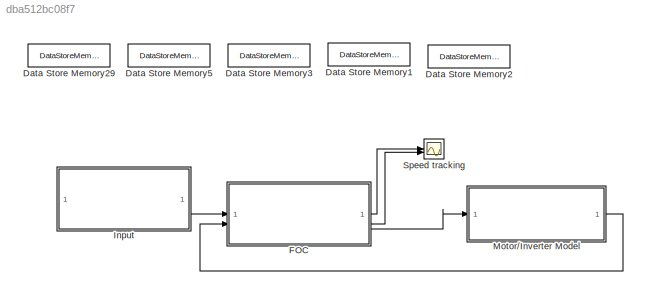
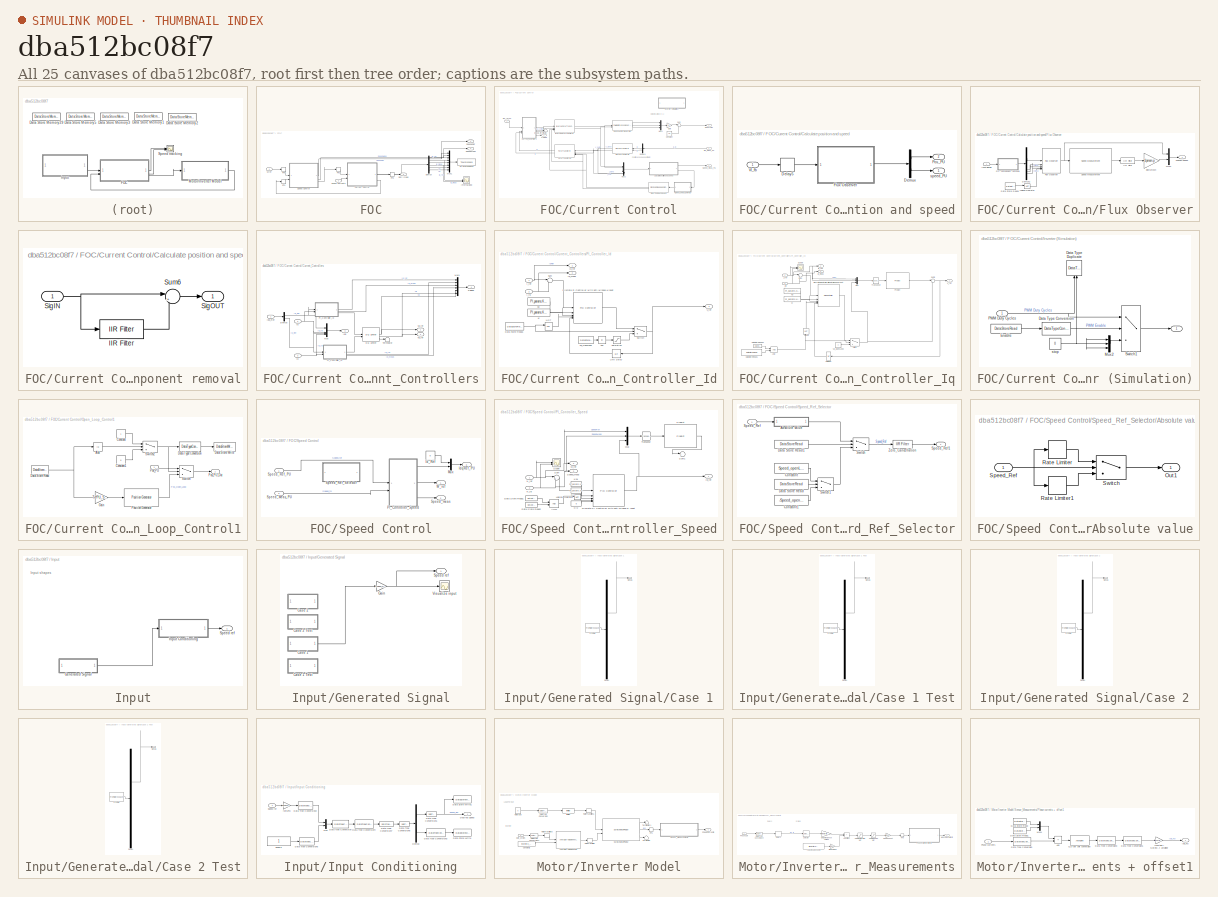
[diagram: thumbnail index - all 25 canvases of the model, root first then tree order]
MODEL slx_dba512bc08f7
KIND model
CONFIG AbsTol = auto
CONFIG EnableMultiTasking = off
CONFIG FixedStep = auto
CONFIG MaxStep = auto
CONFIG MinStep = auto
CONFIG RelTol = 1e-3
CONFIG SampleTimeConstraint = Unconstrained
CONFIG SolverName = VariableStepAuto
CONFIG StartTime = 0.0
CONFIG StopTime = 10
BLOCK [DataStoreMemory] Data Store Memory1
  DataStoreName = IaOffset
  InitialValue = inverter.CtSensAOffset
  ShowAdditionalParam = off
BLOCK [DataStoreMemory] Data Store Memory2
  DataStoreName = IbOffset
  InitialValue = inverter.CtSensBOffset
  ShowAdditionalParam = off
BLOCK [DataStoreMemory] Data Store Memory29
  DataStoreName = Enable
  OutDataTypeStr = boolean
  ReadBeforeWriteMsg = warning
  ShowAdditionalParam = off
  WriteAfterReadMsg = warning
  WriteAfterWriteMsg = warning
BLOCK [DataStoreMemory] Data Store Memory3
  DataStoreName = Speed_ref
  InitialValue = 0.1
  OutDataTypeStr = dataType
  ReadBeforeWriteMsg = warning
  ShowAdditionalParam = off
  WriteAfterReadMsg = warning
  WriteAfterWriteMsg = warning
BLOCK [DataStoreMemory] Data Store Memory5
  DataStoreName = EnClosedLoop
  OutDataTypeStr = boolean
  ReadBeforeWriteMsg = warning
  ShowAdditionalParam = off
  WriteAfterReadMsg = warning
  WriteAfterWriteMsg = warning
BLOCK [SubSystem] FOC
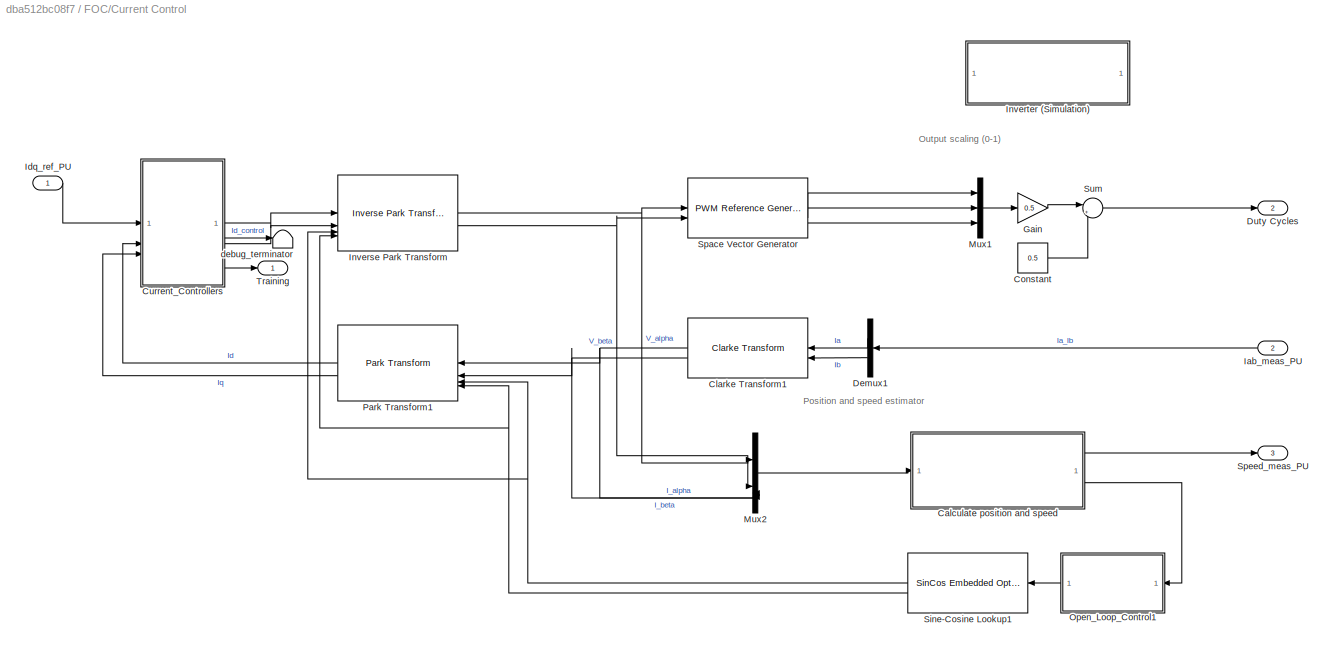
BLOCK [SubSystem] FOC/Current Control
BLOCK [SubSystem] FOC/Current Control/Calculate position and speed
BLOCK [Delay] FOC/Current Control/Calculate position and speed/Delay5
  DelayLength = 1
  InputPortMap = u0
BLOCK [Demux] FOC/Current Control/Calculate position and speed/Demux
  Outputs = 2
BLOCK [SubSystem] FOC/Current Control/Calculate position and speed/Flux Observer
BLOCK [SubSystem] FOC/Current Control/Calculate position and speed/Flux Observer/DC component removal
BLOCK [Reference] FOC/Current Control/Calculate position and speed/Flux Observer/DC component removal/IIR Filter  REF=mcbcontrolslib/IIR Filter
  SourceBlock = mcbcontrolslib/IIR Filter
  SourceType = IIR Filter
BLOCK [Inport] FOC/Current Control/Calculate position and speed/Flux Observer/DC component removal/SigIN
BLOCK [Outport] FOC/Current Control/Calculate position and speed/Flux Observer/DC component removal/SigOUT
BLOCK [Sum] FOC/Current Control/Calculate position and speed/Flux Observer/DC component removal/Sum6
  AccumDataTypeStr = Inherit: Same as first input
  Inputs = |+-
  OutDataTypeStr = Inherit: Same as first input
  RndMeth = Simplest
BLOCK [DataStoreRead] FOC/Current Control/Calculate position and speed/Flux Observer/Data Store Read1
  DataStoreName = Enable
  IndexOptions = Index vector (dialog)
  Indices = 1
  OutputSizes = 1
BLOCK [Demux] FOC/Current Control/Calculate position and speed/Flux Observer/Demux2
BLOCK [Reference] FOC/Current Control/Calculate position and speed/Flux Observer/Flux Observer  REF=mcbpositiondecoderlib/Flux Observer
  SourceBlock = mcbpositiondecoderlib/Flux Observer
  SourceType = Flux Observer
BLOCK [Reference] FOC/Current Control/Calculate position and speed/Flux Observer/IIR Filter  REF=mcbcontrolslib/IIR Filter
  SourceBlock = mcbcontrolslib/IIR Filter
  SourceType = IIR Filter
BLOCK [Inport] FOC/Current Control/Calculate position and speed/Flux Observer/InputSignals
BLOCK [Logic] FOC/Current Control/Calculate position and speed/Flux Observer/Logical Operator
  AllPortsSameDT = off
  IconShape = distinctive
  Operator = NOT
  OutDataTypeStr = boolean
BLOCK [Mux] FOC/Current Control/Calculate position and speed/Flux Observer/Mux2
  DisplayOption = bar
  Inputs = 2
BLOCK [Outport] FOC/Current Control/Calculate position and speed/Flux Observer/Position//Speed
BLOCK [Reference] FOC/Current Control/Calculate position and speed/Flux Observer/Speed Measurement  REF=mcbpositiondecoderlib/Speed Measurement
  SourceBlock = mcbpositiondecoderlib/Speed Measurement
  SourceType = Speed Measurement
BLOCK [Gain] FOC/Current Control/Calculate position and speed/Flux Observer/elect2mech
  Gain = 1/pmsm.p
  OutDataTypeStr = Inherit: Same as input
  RndMeth = Simplest
BLOCK [Outport] FOC/Current Control/Calculate position and speed/Pos_PU
  Port = 2
BLOCK [Inport] FOC/Current Control/Calculate position and speed/VI_fb
BLOCK [Outport] FOC/Current Control/Calculate position and speed/speed_PU
BLOCK [Reference] FOC/Current Control/Clarke Transform1  REF=mcbcontrolslib/Clarke Transform
  NameLocation = top
  SourceBlock = mcbcontrolslib/Clarke Transform
  SourceType = Clarke Transform
BLOCK [Constant] FOC/Current Control/Constant
  OutDataTypeStr = dataType
  Value = 0.5
BLOCK [SubSystem] FOC/Current Control/Current_Controllers
BLOCK [Reference] FOC/Current Control/Current_Controllers/DQ Limiter  REF=mcbcontrolslib/DQ Limiter
  SourceBlock = mcbcontrolslib/DQ Limiter
  SourceType = DQ Limiter
BLOCK [Demux] FOC/Current Control/Current_Controllers/Demux
  Outputs = 2
BLOCK [Inport] FOC/Current Control/Current_Controllers/Id
  Port = 2
BLOCK [Outport] FOC/Current Control/Current_Controllers/Idq
  Port = 3
  VectorParamsAs1DForOutWhenUnconnected = off
BLOCK [Inport] FOC/Current Control/Current_Controllers/Idq_Ref
BLOCK [Inport] FOC/Current Control/Current_Controllers/Iq
  Port = 3
BLOCK [Mux] FOC/Current Control/Current_Controllers/Mux
  DisplayOption = bar
BLOCK [Mux] FOC/Current Control/Current_Controllers/Mux1
  DisplayOption = bar
  Inputs = 6
BLOCK [SubSystem] FOC/Current Control/Current_Controllers/PI_Controller_Id
  NameLocation = top
BLOCK [Abs] FOC/Current Control/Current_Controllers/PI_Controller_Id/Abs
  RndMeth = Simplest
  SaturateOnIntegerOverflow = off
BLOCK [DataStoreRead] FOC/Current Control/Current_Controllers/PI_Controller_Id/Data Store Read1
  DataStoreName = EnClosedLoop
  IndexOptions = Index vector (dialog)
  Indices = 1
  OutputSizes = 1
BLOCK [Reference] FOC/Current Control/Current_Controllers/PI_Controller_Id/Discrete PI Controller with anti-windup & reset  REF=slpidlib/PID Controller
  LibrarySourceBlock = mcbcontrolslib/PI Controller
  SourceBlock = slpidlib/PID Controller
  SourceType = PID 1dof
BLOCK [Inport] FOC/Current Control/Current_Controllers/PI_Controller_Id/I_fb
  Port = 2
BLOCK [Inport] FOC/Current Control/Current_Controllers/PI_Controller_Id/I_ref
BLOCK [Outport] FOC/Current Control/Current_Controllers/PI_Controller_Id/Id_meas
  Port = 2
  VectorParamsAs1DForOutWhenUnconnected = off
BLOCK [Outport] FOC/Current Control/Current_Controllers/PI_Controller_Id/Id_ref
  VectorParamsAs1DForOutWhenUnconnected = off
BLOCK [Constant] FOC/Current Control/Current_Controllers/PI_Controller_Id/Ki
  OutDataTypeStr = dataType
  SampleTime = -1
  Value = PI_params.Ki_i*Ts
BLOCK [Constant] FOC/Current Control/Current_Controllers/PI_Controller_Id/Kp
  NameLocation = top
  OutDataTypeStr = dataType
  SampleTime = -1
  Value = PI_params.Kp_i
BLOCK [Logic] FOC/Current Control/Current_Controllers/PI_Controller_Id/NOT
  AllPortsSameDT = off
  IconShape = distinctive
  Operator = NOT
  OutDataTypeStr = boolean
BLOCK [Saturate] FOC/Current Control/Current_Controllers/PI_Controller_Id/Saturation
  LowerLimit = 0.15
  RndMeth = Simplest
BLOCK [Sum] FOC/Current Control/Current_Controllers/PI_Controller_Id/Sum
  AccumDataTypeStr = Inherit: Same as first input
  Inputs = |+-
  OutDataTypeStr = Inherit: Same as first input
BLOCK [Switch] FOC/Current Control/Current_Controllers/PI_Controller_Id/Switch
  Criteria = u2 ~= 0
  InputSameDT = off
  RndMeth = Simplest
  SaturateOnIntegerOverflow = off
BLOCK [UnitDelay] FOC/Current Control/Current_Controllers/PI_Controller_Id/Unit Delay
  HasFrameUpgradeWarning = on
  NameLocation = top
  SampleTime = -1
BLOCK [Outport] FOC/Current Control/Current_Controllers/PI_Controller_Id/V_ref
  Port = 3
  VectorParamsAs1DForOutWhenUnconnected = off
BLOCK [DataStoreRead] FOC/Current Control/Current_Controllers/PI_Controller_Id/Vd_OpenLoop
  DataStoreName = Speed_ref
  IndexOptions = Index vector (dialog)
  Indices = 1
  OutputSizes = 1
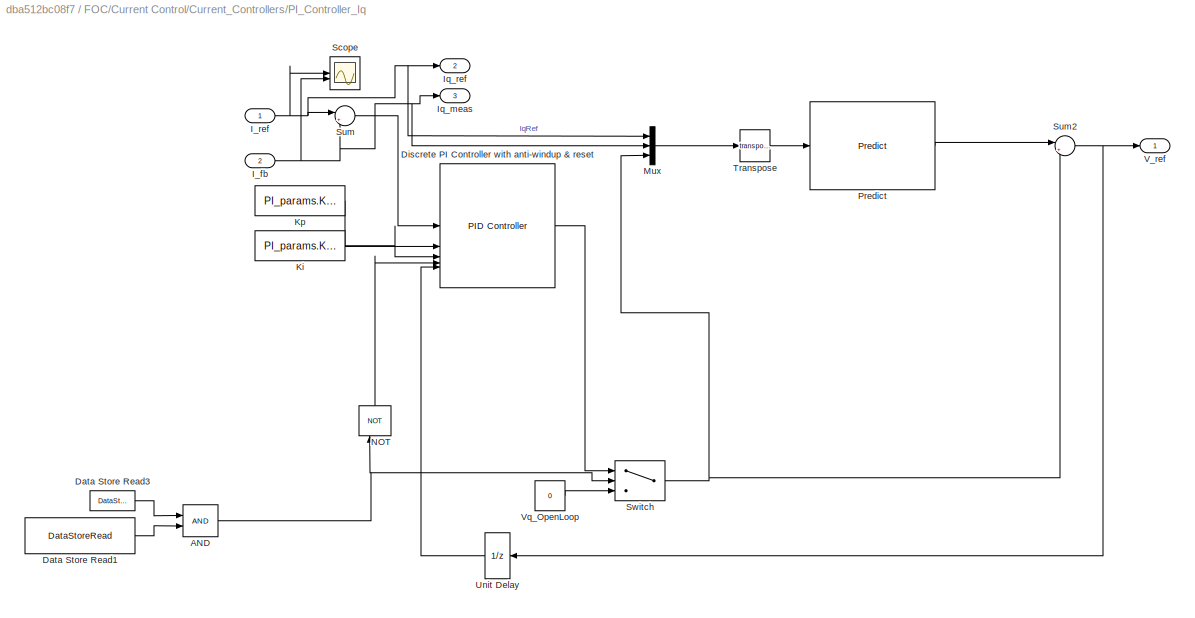
BLOCK [SubSystem] FOC/Current Control/Current_Controllers/PI_Controller_Iq
  NameLocation = top
BLOCK [Logic] FOC/Current Control/Current_Controllers/PI_Controller_Iq/AND
  AllPortsSameDT = off
  IconShape = distinctive
  OutDataTypeStr = boolean
BLOCK [DataStoreRead] FOC/Current Control/Current_Controllers/PI_Controller_Iq/Data Store Read1
  DataStoreName = EnClosedLoop
  IndexOptions = Index vector (dialog)
  Indices = 1
  OutputSizes = 1
BLOCK [DataStoreRead] FOC/Current Control/Current_Controllers/PI_Controller_Iq/Data Store Read3
  DataStoreName = Enable
  IndexOptions = Index vector (dialog)
  Indices = 1
  OutputSizes = 1
BLOCK [Reference] FOC/Current Control/Current_Controllers/PI_Controller_Iq/Discrete PI Controller with anti-windup & reset  REF=slpidlib/PID Controller
  LibrarySourceBlock = mcbcontrolslib/PI Controller
  SourceBlock = slpidlib/PID Controller
  SourceType = PID 1dof
BLOCK [Inport] FOC/Current Control/Current_Controllers/PI_Controller_Iq/I_fb
  Port = 2
BLOCK [Inport] FOC/Current Control/Current_Controllers/PI_Controller_Iq/I_ref
BLOCK [Outport] FOC/Current Control/Current_Controllers/PI_Controller_Iq/Iq_meas
  Port = 3
  VectorParamsAs1DForOutWhenUnconnected = off
BLOCK [Outport] FOC/Current Control/Current_Controllers/PI_Controller_Iq/Iq_ref
  Port = 2
  VectorParamsAs1DForOutWhenUnconnected = off
BLOCK [Constant] FOC/Current Control/Current_Controllers/PI_Controller_Iq/Ki
  OutDataTypeStr = dataType
  SampleTime = -1
  Value = PI_params.Ki_i*Ts
BLOCK [Constant] FOC/Current Control/Current_Controllers/PI_Controller_Iq/Kp
  NameLocation = top
  OutDataTypeStr = dataType
  SampleTime = -1
  Value = PI_params.Kp_i
BLOCK [Mux] FOC/Current Control/Current_Controllers/PI_Controller_Iq/Mux
  DisplayOption = bar
  Inputs = 3
BLOCK [Logic] FOC/Current Control/Current_Controllers/PI_Controller_Iq/NOT
  AllPortsSameDT = off
  IconShape = distinctive
  NameLocation = right
  Operator = NOT
  OutDataTypeStr = boolean
BLOCK [Reference] FOC/Current Control/Current_Controllers/PI_Controller_Iq/Predict  REF=deeplib/Predict
  SourceBlock = deeplib/Predict
  SourceType = Predict
BLOCK [Scope] FOC/Current Control/Current_Controllers/PI_Controller_Iq/Scope
  Floating = off
  NumInputPorts = 2
  ScopeSpecificationString = Simulink.scopes.TimeScopeBlockCfg('CurrentConfiguration', extmgr.ConfigurationSet(extmgr.Configuration('Core','General UI',true,'FigureColor',[1 1 1]),extmgr.Configuration('Core','Source UI',true),extmgr.Configuration('Sources','WiredSimulink',true,'DataLoggingVariableName','ScopeData1'),extmgr.Configuration('Visuals','Time Domain',true,'SerializedDisplays',{struct('MinYLimReal','-0.64917','MaxYLi...<+2017ch>
BLOCK [Sum] FOC/Current Control/Current_Controllers/PI_Controller_Iq/Sum
  AccumDataTypeStr = Inherit: Same as first input
  Inputs = |+-
  OutDataTypeStr = Inherit: Same as first input
BLOCK [Sum] FOC/Current Control/Current_Controllers/PI_Controller_Iq/Sum2
  Inputs = |++
BLOCK [Switch] FOC/Current Control/Current_Controllers/PI_Controller_Iq/Switch
  Criteria = u2 ~= 0
  InputSameDT = off
  RndMeth = Simplest
  SaturateOnIntegerOverflow = off
BLOCK [Math] FOC/Current Control/Current_Controllers/PI_Controller_Iq/Transpose
  Operator = transpose
BLOCK [UnitDelay] FOC/Current Control/Current_Controllers/PI_Controller_Iq/Unit Delay
  HasFrameUpgradeWarning = on
  NameLocation = top
  SampleTime = -1
BLOCK [Outport] FOC/Current Control/Current_Controllers/PI_Controller_Iq/V_ref
  VectorParamsAs1DForOutWhenUnconnected = off
BLOCK [Constant] FOC/Current Control/Current_Controllers/PI_Controller_Iq/Vq_OpenLoop
  OutDataTypeStr = dataType
  SampleTime = -1
  Value = 0
BLOCK [Terminator] FOC/Current Control/Current_Controllers/Terminator
BLOCK [Outport] FOC/Current Control/Current_Controllers/Training
  Port = 4
  VectorParamsAs1DForOutWhenUnconnected = off
BLOCK [Outport] FOC/Current Control/Current_Controllers/Vd_ref
  NameLocation = top
  VectorParamsAs1DForOutWhenUnconnected = off
BLOCK [Outport] FOC/Current Control/Current_Controllers/Vq_ref
  Port = 2
  VectorParamsAs1DForOutWhenUnconnected = off
BLOCK [Demux] FOC/Current Control/Demux1
  NameLocation = top
  Outputs = 2
BLOCK [Outport] FOC/Current Control/Duty Cycles
  Port = 2
  VectorParamsAs1DForOutWhenUnconnected = off
BLOCK [Gain] FOC/Current Control/Gain
  Gain = 0.5
  OutDataTypeStr = Inherit: Same as input
BLOCK [Inport] FOC/Current Control/Iab_meas_PU
  NameLocation = top
  Port = 2
BLOCK [Inport] FOC/Current Control/Idq_ref_PU
BLOCK [Reference] FOC/Current Control/Inverse Park Transform  REF=mcbcontrolslib/Inverse Park Transform
  SourceBlock = mcbcontrolslib/Inverse Park Transform
  SourceType = Inverse Park Transform
BLOCK [SubSystem] FOC/Current Control/Inverter (Simulation)
  Commented = on
BLOCK [Outport] FOC/Current Control/Inverter (Simulation)/ 
  VectorParamsAs1DForOutWhenUnconnected = off
BLOCK [DataTypeConversion] FOC/Current Control/Inverter (Simulation)/Data Type Conversion
  OutDataTypeStr = dataType
  RndMeth = Floor
  SaturateOnIntegerOverflow = off
BLOCK [DataTypeDuplicate] FOC/Current Control/Inverter (Simulation)/Data Type Duplicate
BLOCK [DataStoreRead] FOC/Current Control/Inverter (Simulation)/Enable
  DataStoreName = Enable
  IndexOptions = Index vector (dialog)
  Indices = 1
  OutputSizes = 1
BLOCK [Mux] FOC/Current Control/Inverter (Simulation)/Mux2
  DisplayOption = bar
  Inputs = 3
BLOCK [Inport] FOC/Current Control/Inverter (Simulation)/PWM Duty Cycles
BLOCK [Switch] FOC/Current Control/Inverter (Simulation)/Switch1
  InputSameDT = off
  RndMeth = Simplest
  SaturateOnIntegerOverflow = off
  Threshold = 0.5
BLOCK [Constant] FOC/Current Control/Inverter (Simulation)/stop
  OutDataTypeStr = Inherit: Inherit via back propagation
  Value = 0
BLOCK [Mux] FOC/Current Control/Mux1
  DisplayOption = bar
  Inputs = 3
BLOCK [Mux] FOC/Current Control/Mux2
  DisplayOption = bar
BLOCK [SubSystem] FOC/Current Control/Open_Loop_Control1
  NameLocation = top
BLOCK [Abs] FOC/Current Control/Open_Loop_Control1/Abs
  SaturateOnIntegerOverflow = off
BLOCK [Constant] FOC/Current Control/Open_Loop_Control1/Constant
  OutDataTypeStr = uint16
BLOCK [Constant] FOC/Current Control/Open_Loop_Control1/Constant1
  OutDataTypeStr = uint16
  Value = 0
BLOCK [DataStoreRead] FOC/Current Control/Open_Loop_Control1/Data Store Read
  DataStoreName = Speed_ref
  IndexOptions = Index vector (dialog)
  Indices = 1
  OutputSizes = 1
BLOCK [DataStoreWrite] FOC/Current Control/Open_Loop_Control1/Data Store Write
  DataStoreName = EnClosedLoop
  IndexOptions = Index vector (dialog)
  Indices = 1
  OutputSizes = 1
BLOCK [DataTypeConversion] FOC/Current Control/Open_Loop_Control1/Data Type Conversion
  OutDataTypeStr = boolean
  RndMeth = Simplest
  SaturateOnIntegerOverflow = off
BLOCK [Gain] FOC/Current Control/Open_Loop_Control1/Gain
  Gain = Ts*PU_System.N_base*pmsm.p/60
  OutDataTypeStr = Inherit: Same as input
  ParamDataTypeStr = Inherit: Same as input
BLOCK [Inport] FOC/Current Control/Open_Loop_Control1/Pos_PU
BLOCK [Outport] FOC/Current Control/Open_Loop_Control1/Pos_PU_Out
BLOCK [Reference] FOC/Current Control/Open_Loop_Control1/Position Generator  REF=mcbcontrolslib/Position Generator
  SourceBlock = mcbcontrolslib/Position Generator
  SourceType = Position Generator
BLOCK [Switch] FOC/Current Control/Open_Loop_Control1/Switch
  Criteria = u2 ~= 0
  InputSameDT = off
  SaturateOnIntegerOverflow = off
  Threshold = 0.1
BLOCK [Switch] FOC/Current Control/Open_Loop_Control1/Switch2
  Criteria = u2 > Threshold
  InputSameDT = off
  SaturateOnIntegerOverflow = off
  Threshold = Speed_openLoop_PU
  ZeroCross = off
BLOCK [Reference] FOC/Current Control/Park Transform1  REF=mcbcontrolslib/Park Transform
  NameLocation = top
  SourceBlock = mcbcontrolslib/Park Transform
  SourceType = Park Transform
BLOCK [Reference] FOC/Current Control/Sine-Cosine Lookup1  REF=mcbcontrolslib/SinCos Embedded Optimized
  NameLocation = top
  SourceBlock = mcbcontrolslib/SinCos Embedded Optimized
  SourceType = SinCos Embedded Optimized
BLOCK [Reference] FOC/Current Control/Space Vector Generator  REF=mcbcontrolslib/PWM Reference Generator
  SourceBlock = mcbcontrolslib/PWM Reference Generator
  SourceType = PWM Modulation
BLOCK [Outport] FOC/Current Control/Speed_meas_PU
  InitialOutput = 0
  Port = 3
  VectorParamsAs1DForOutWhenUnconnected = off
BLOCK [Sum] FOC/Current Control/Sum
  AccumDataTypeStr = Inherit: Same as first input
  Inputs = |++
BLOCK [Outport] FOC/Current Control/Training
  VectorParamsAs1DForOutWhenUnconnected = off
BLOCK [Terminator] FOC/Current Control/debug_terminator
BLOCK [Demux] FOC/Demux
  Outputs = 6
BLOCK [Outport] FOC/Duty cycles
  Port = 3
BLOCK [Scope] FOC/Internal loop
  Floating = off
  NumInputPorts = 2
  ScopeSpecificationString = Simulink.scopes.TimeScopeBlockCfg('CurrentConfiguration', extmgr.ConfigurationSet(extmgr.Configuration('Core','General UI',true,'FigureColor',[1 1 1]),extmgr.Configuration('Core','Source UI',true),extmgr.Configuration('Sources','WiredSimulink',true,'DataLoggingVariableName','ScopeData4'),extmgr.Configuration('Visuals','Time Domain',true,'SerializedDisplays',{struct('MinYLimReal','-0.87933','MaxYLi...<+2019ch>
BLOCK [Mux] FOC/Mux1
  DisplayOption = bar
  Inputs = 8
BLOCK [Inport] FOC/Phase Currents
  Port = 2
BLOCK [RateTransition] FOC/RT2
  Deterministic = off
BLOCK [RateTransition] FOC/RT3
  Deterministic = off
BLOCK [RateTransition] FOC/RT4
  Deterministic = off
  OutPortSampleTime = Ts_speed
BLOCK [RateTransition] FOC/RT6
  Deterministic = off
  OutPortSampleTime = Ts_speed
BLOCK [SubSystem] FOC/Speed Control
  RTWSystemCode = Reusable function
  SystemSampleTime = Ts_speed
  TreatAsAtomicUnit = on
BLOCK [Constant] FOC/Speed Control/Id_Ref
  OutDataTypeStr = dataType
  Value = 0
BLOCK [Outport] FOC/Speed Control/IdqRef_PU
  Port = 3
  VectorParamsAs1DForOutWhenUnconnected = off
BLOCK [Mux] FOC/Speed Control/Mux
  DisplayOption = bar
  Inputs = 2
BLOCK [SubSystem] FOC/Speed Control/PI_Controller_Speed
BLOCK [Logic] FOC/Speed Control/PI_Controller_Speed/AND
  AllPortsSameDT = off
  IconShape = distinctive
  OutDataTypeStr = boolean
BLOCK [DataStoreRead] FOC/Speed Control/PI_Controller_Speed/Data Store Read1
  DataStoreName = Enable
  IndexOptions = Index vector (dialog)
  Indices = 1
  OutputSizes = 1
BLOCK [DataStoreRead] FOC/Speed Control/PI_Controller_Speed/Data Store Read2
  DataStoreName = EnClosedLoop
  IndexOptions = Index vector (dialog)
  Indices = 1
  OutputSizes = 1
BLOCK [Reference] FOC/Speed Control/PI_Controller_Speed/Discrete PI Controller with anti-windup & reset  REF=slpidlib/PID Controller
  LibrarySourceBlock = mcbcontrolslib/PI Controller
  SourceBlock = slpidlib/PID Controller
  SourceType = PID 1dof
BLOCK [Outport] FOC/Speed Control/PI_Controller_Speed/Iq_ref
  VectorParamsAs1DForOutWhenUnconnected = off
BLOCK [Constant] FOC/Speed Control/PI_Controller_Speed/Ki1
  NameLocation = top
  OutDataTypeStr = dataType
  SampleTime = -1
  Value = PI_params.Ki_speed*Ts_speed
BLOCK [Constant] FOC/Speed Control/PI_Controller_Speed/Ki2
  NameLocation = top
  OutDataTypeStr = dataType
  SampleTime = -1
  Value = 0
BLOCK [Constant] FOC/Speed Control/PI_Controller_Speed/Kp1
  NameLocation = top
  OutDataTypeStr = dataType
  SampleTime = -1
  Value = PI_params.Kp_speed
BLOCK [Logic] FOC/Speed Control/PI_Controller_Speed/Logical Operator
  AllPortsSameDT = off
  IconShape = distinctive
  Operator = NOT
  OutDataTypeStr = boolean
BLOCK [Mux] FOC/Speed Control/PI_Controller_Speed/Mux
  Commented = on
  DisplayOption = bar
  Inputs = 3
BLOCK [Inport] FOC/Speed Control/PI_Controller_Speed/N_fb
  Port = 2
BLOCK [Inport] FOC/Speed Control/PI_Controller_Speed/N_ref
BLOCK [Reference] FOC/Speed Control/PI_Controller_Speed/Predict  REF=deeplib/Predict
  Commented = on
  SourceBlock = deeplib/Predict
  SourceType = Predict
BLOCK [Scope] FOC/Speed Control/PI_Controller_Speed/Scope
  Floating = off
  NumInputPorts = 2
  ScopeSpecificationString = Simulink.scopes.TimeScopeBlockCfg('CurrentConfiguration', extmgr.ConfigurationSet(extmgr.Configuration('Core','General UI',true,'FigureColor',[1 1 1]),extmgr.Configuration('Core','Source UI',true),extmgr.Configuration('Sources','WiredSimulink',true),extmgr.Configuration('Visuals','Time Domain',true,'SerializedDisplays',{struct('MinYLimReal','-0.19273','MaxYLimReal','1.06655','YLabelReal','','MinYL...<+1986ch>
BLOCK [Outport] FOC/Speed Control/PI_Controller_Speed/Speed_meas
  Port = 3
  VectorParamsAs1DForOutWhenUnconnected = off
BLOCK [Sum] FOC/Speed Control/PI_Controller_Speed/Sum
  Inputs = |+-
  OutDataTypeStr = Inherit: Same as first input
BLOCK [Sum] FOC/Speed Control/PI_Controller_Speed/Sum1
  Commented = on
  Inputs = |++
BLOCK [Math] FOC/Speed Control/PI_Controller_Speed/Transpose
  Commented = on
  Operator = transpose
BLOCK [Outport] FOC/Speed Control/PI_Controller_Speed/W_ref
  Port = 2
  VectorParamsAs1DForOutWhenUnconnected = off
BLOCK [Inport] FOC/Speed Control/Speed_Meas_PU
  Port = 2
BLOCK [Inport] FOC/Speed Control/Speed_Ref_PU
BLOCK [SubSystem] FOC/Speed Control/Speed_Ref_Selector
  Commented = on
BLOCK [SubSystem] FOC/Speed Control/Speed_Ref_Selector/Absolute value
BLOCK [Outport] FOC/Speed Control/Speed_Ref_Selector/Absolute value/Out1
BLOCK [RateLimiter] FOC/Speed Control/Speed_Ref_Selector/Absolute value/Rate Limiter
  FallingSlewLimit = -acceleration
  InitialCondition = Speed_openLoop_PU
  RisingSlewLimit = acceleration
  SampleTimeMode = inherited
BLOCK [RateLimiter] FOC/Speed Control/Speed_Ref_Selector/Absolute value/Rate Limiter1
  FallingSlewLimit = -acceleration
  InitialCondition = -Speed_openLoop_PU
  RisingSlewLimit = acceleration
  SampleTimeMode = inherited
BLOCK [Inport] FOC/Speed Control/Speed_Ref_Selector/Absolute value/Speed_Ref
BLOCK [Switch] FOC/Speed Control/Speed_Ref_Selector/Absolute value/Switch
  InputSameDT = off
  SaturateOnIntegerOverflow = off
BLOCK [Constant] FOC/Speed Control/Speed_Ref_Selector/Constant
  OutDataTypeStr = dataType
  Value = Speed_openLoop_PU
BLOCK [Constant] FOC/Speed Control/Speed_Ref_Selector/Constant1
  OutDataTypeStr = dataType
  Value = -Speed_openLoop_PU
BLOCK [DataStoreRead] FOC/Speed Control/Speed_Ref_Selector/Data Store Read
  DataStoreName = Speed_ref
  IndexOptions = Index vector (dialog)
  Indices = 1
  OutputSizes = 1
BLOCK [DataStoreRead] FOC/Speed Control/Speed_Ref_Selector/Data Store Read1
  DataStoreName = EnClosedLoop
  IndexOptions = Index vector (dialog)
  Indices = 1
  OutputSizes = 1
BLOCK [Inport] FOC/Speed Control/Speed_Ref_Selector/Speed_Ref
BLOCK [Outport] FOC/Speed Control/Speed_Ref_Selector/Speed_Ref1
BLOCK [Switch] FOC/Speed Control/Speed_Ref_Selector/Switch
  Criteria = u2 > Threshold
  InputSameDT = off
  SaturateOnIntegerOverflow = off
BLOCK [Switch] FOC/Speed Control/Speed_Ref_Selector/Switch1
  Criteria = u2 > Threshold
  InputSameDT = off
  SaturateOnIntegerOverflow = off
BLOCK [Reference] FOC/Speed Control/Speed_Ref_Selector/Zero_Cancellation  REF=mcbcontrolslib/IIR Filter
  SourceBlock = mcbcontrolslib/IIR Filter
  SourceType = IIR Filter
BLOCK [Outport] FOC/Speed Control/Speed_meas
  Port = 2
  VectorParamsAs1DForOutWhenUnconnected = off
BLOCK [Outport] FOC/Speed Control/W_ref
  VectorParamsAs1DForOutWhenUnconnected = off
BLOCK [Outport] FOC/SpeedMeas
  Port = 2
BLOCK [Outport] FOC/SpeedeRef
BLOCK [ToWorkspace] FOC/To Workspace1
  FixptAsFi = on
  MaxDataPoints = inf
  SampleTime = -1
  SaveFormat = Structure
  VariableName = simout
BLOCK [Inport] FOC/Wref
BLOCK [SubSystem] Input
BLOCK [SubSystem] Input/Generated Signal
  NameLocation = top
BLOCK [SubSystem] Input/Generated Signal/Case 1
  ClipboardFcn = sigbuilder_block('clipboard');
  CloseFcn = sigbuilder_block('close');
  ContinueFcn = sigbuilder_block('continue');
  CopyFcn = sigbuilder_block('copy');
  DeleteFcn = sigbuilder_block('delete');
  LoadFcn = sigbuilder_block('load');
  MaskHideContents = on
  ModelCloseFcn = sigbuilder_block('modelClose');
  NameChangeFcn = sigbuilder_block('namechange');
  OpenFcn = sigbuilder_block('open',[12.96 20.16 1141.2 517.68 ]);
  PauseFcn = sigbuilder_block('pause');
  PreSaveFcn = sigbuilder_block('preSave');
  StartFcn = sigbuilder_block('start');
  StopFcn = sigbuilder_block('stop');
  Tag = STV Subsys
BLOCK [SubSystem] Input/Generated Signal/Case 1 Test
  ClipboardFcn = sigbuilder_block('clipboard');
  CloseFcn = sigbuilder_block('close');
  ContinueFcn = sigbuilder_block('continue');
  CopyFcn = sigbuilder_block('copy');
  DeleteFcn = sigbuilder_block('delete');
  LoadFcn = sigbuilder_block('load');
  MaskHideContents = on
  ModelCloseFcn = sigbuilder_block('modelClose');
  NameChangeFcn = sigbuilder_block('namechange');
  OpenFcn = sigbuilder_block('open',[12.96 20.16 1141.2 517.68 ]);
  PauseFcn = sigbuilder_block('pause');
  PreSaveFcn = sigbuilder_block('preSave');
  StartFcn = sigbuilder_block('start');
  StopFcn = sigbuilder_block('stop');
  Tag = STV Subsys
BLOCK [Demux] Input/Generated Signal/Case 1 Test/Demux
  DisplayOption = none
  Outputs = 1
  Tag = STV Demux
BLOCK [FromWorkspace] Input/Generated Signal/Case 1 Test/FromWs
  Tag = STV FromWs
  VariableName = tuvar
BLOCK [Outport] Input/Generated Signal/Case 1 Test/Signal 1
  Tag = STV Outport
BLOCK [Demux] Input/Generated Signal/Case 1/Demux
  DisplayOption = none
  Outputs = 1
  Tag = STV Demux
BLOCK [FromWorkspace] Input/Generated Signal/Case 1/FromWs
  Tag = STV FromWs
  VariableName = tuvar
BLOCK [Outport] Input/Generated Signal/Case 1/Signal 1
  Tag = STV Outport
BLOCK [SubSystem] Input/Generated Signal/Case 2
  ClipboardFcn = sigbuilder_block('clipboard');
  CloseFcn = sigbuilder_block('close');
  ContinueFcn = sigbuilder_block('continue');
  CopyFcn = sigbuilder_block('copy');
  DeleteFcn = sigbuilder_block('delete');
  LoadFcn = sigbuilder_block('load');
  MaskHideContents = on
  ModelCloseFcn = sigbuilder_block('modelClose');
  NameChangeFcn = sigbuilder_block('namechange');
  OpenFcn = sigbuilder_block('open',[12.96 -12.96 1244.16 550.8 ]);
  PauseFcn = sigbuilder_block('pause');
  PreSaveFcn = sigbuilder_block('preSave');
  StartFcn = sigbuilder_block('start');
  StopFcn = sigbuilder_block('stop');
  Tag = STV Subsys
BLOCK [SubSystem] Input/Generated Signal/Case 2 Test
  ClipboardFcn = sigbuilder_block('clipboard');
  CloseFcn = sigbuilder_block('close');
  ContinueFcn = sigbuilder_block('continue');
  CopyFcn = sigbuilder_block('copy');
  DeleteFcn = sigbuilder_block('delete');
  LoadFcn = sigbuilder_block('load');
  MaskHideContents = on
  ModelCloseFcn = sigbuilder_block('modelClose');
  NameChangeFcn = sigbuilder_block('namechange');
  OpenFcn = sigbuilder_block('open',[12.96 -12.96 1244.16 550.8 ]);
  PauseFcn = sigbuilder_block('pause');
  PreSaveFcn = sigbuilder_block('preSave');
  StartFcn = sigbuilder_block('start');
  StopFcn = sigbuilder_block('stop');
  Tag = STV Subsys
BLOCK [Demux] Input/Generated Signal/Case 2 Test/Demux
  DisplayOption = none
  Outputs = 1
  Tag = STV Demux
BLOCK [FromWorkspace] Input/Generated Signal/Case 2 Test/FromWs
  Tag = STV FromWs
  VariableName = tuvar
BLOCK [Outport] Input/Generated Signal/Case 2 Test/Signal 1
  Tag = STV Outport
BLOCK [Demux] Input/Generated Signal/Case 2/Demux
  DisplayOption = none
  Outputs = 1
  Tag = STV Demux
BLOCK [FromWorkspace] Input/Generated Signal/Case 2/FromWs
  Tag = STV FromWs
  VariableName = tuvar
BLOCK [Outport] Input/Generated Signal/Case 2/Signal 1
  Tag = STV Outport
BLOCK [Gain] Input/Generated Signal/Gain
  Gain = Speed_openLoop_PU*pmsm.N_base / 0.1
BLOCK [Outport] Input/Generated Signal/Speed ref
BLOCK [Scope] Input/Generated Signal/Visualize input
  Floating = off
  NumInputPorts = 1
  ScopeSpecificationString = Simulink.scopes.TimeScopeBlockCfg('CurrentConfiguration', extmgr.ConfigurationSet(extmgr.Configuration('Core','General UI',true),extmgr.Configuration('Core','Source UI',true),extmgr.Configuration('Sources','WiredSimulink',true,'DataLoggingVariableName','ScopeData1'),extmgr.Configuration('Visuals','Time Domain',true,'SerializedDisplays',{struct('MinYLimReal','-163.755','MaxYLimReal','3657.195','YLa...<+1423ch>
BLOCK [SubSystem] Input/Input Conditioning
  RTWMemSecFuncExecute = code_ramfuncs
  SystemSampleTime = 1e-3
BLOCK [DataStoreWrite] Input/Input Conditioning/Data Store Write
  DataStoreName = Enable
  IndexOptions = Index vector (dialog)
  Indices = 1
  OutputSizes = 1
BLOCK [DataStoreWrite] Input/Input Conditioning/Data Store Write1
  DataStoreName = Speed_ref
  IndexOptions = Index vector (dialog)
  Indices = 1
  OutputSizes = 1
BLOCK [DataTypeConversion] Input/Input Conditioning/Data Type Conversion
  OutDataTypeStr = fixdt(1,16,12)
  RndMeth = Simplest
  SaturateOnIntegerOverflow = off
BLOCK [DataTypeConversion] Input/Input Conditioning/Data Type Conversion1
  OutDataTypeStr = dataType
  RndMeth = Simplest
  SaturateOnIntegerOverflow = off
BLOCK [DataTypeConversion] Input/Input Conditioning/Data Type Conversion2
  OutDataTypeStr = single
  RndMeth = Simplest
  SaturateOnIntegerOverflow = off
BLOCK [DataTypeConversion] Input/Input Conditioning/Data Type Conversion3
  OutDataTypeStr = boolean
  RndMeth = Simplest
  SaturateOnIntegerOverflow = off
BLOCK [DataTypeConversion] Input/Input Conditioning/Data Type Conversion4
  ConvertRealWorld = Stored Integer (SI)
  OutDataTypeStr = uint32
  RndMeth = Simplest
  SaturateOnIntegerOverflow = off
BLOCK [DataTypeConversion] Input/Input Conditioning/Data Type Conversion5
  OutDataTypeStr = single
  RndMeth = Simplest
  SaturateOnIntegerOverflow = off
BLOCK [DataTypeConversion] Input/Input Conditioning/Data Type Conversion6
  OutDataTypeStr = single
  RndMeth = Simplest
  SaturateOnIntegerOverflow = off
BLOCK [DataTypeConversion] Input/Input Conditioning/Data Type Conversion7
  ConvertRealWorld = Stored Integer (SI)
  OutDataTypeStr = fixdt(1,16,12)
  RndMeth = Simplest
  SaturateOnIntegerOverflow = off
BLOCK [Demux] Input/Input Conditioning/Demux
  Outputs = 2
BLOCK [Outport] Input/Input Conditioning/Desired Speed
  VectorParamsAs1DForOutWhenUnconnected = off
BLOCK [Constant] Input/Input Conditioning/Enable
  OutDataTypeStr = dataType
  SampleTime = -1
BLOCK [Mux] Input/Input Conditioning/Mux
  DisplayOption = bar
  Inputs = 2
BLOCK [Inport] Input/Input Conditioning/Speed ref
BLOCK [Gain] Input/Input Conditioning/rpm2PU
  Gain = 1/pmsm.N_base
  OutDataTypeStr = Inherit: Same as input
  RndMeth = Simplest
BLOCK [Outport] Input/Speed ref
BLOCK [SubSystem] Motor//Inverter Model
  RTWSystemCode = Reusable function
BLOCK [Reference] Motor//Inverter Model/Average-Value Inverter  REF=mcbplantlib/Average-Value Inverter
  SourceBlock = mcbplantlib/Average-Value Inverter
  SourceType = Average Value Inverter
BLOCK [Constant] Motor//Inverter Model/Constant2
  OutDataTypeStr = single
  SampleTime = -1
  Value = inverter.V_dc
BLOCK [DataTypeConversion] Motor//Inverter Model/Data Type Conversion
  OutDataTypeStr = single
  RndMeth = Floor
  SaturateOnIntegerOverflow = off
BLOCK [DataTypeConversion] Motor//Inverter Model/Data Type Conversion1
  OutDataTypeStr = single
  RndMeth = Simplest
  SaturateOnIntegerOverflow = off
BLOCK [Inport] Motor//Inverter Model/Duty_Cycles
BLOCK [Reference] Motor//Inverter Model/IIR Filter  REF=mcbcontrolslib/IIR Filter
  SourceBlock = mcbcontrolslib/IIR Filter
  SourceType = IIR Filter
BLOCK [Constant] Motor//Inverter Model/No torque
  Value = 0
BLOCK [Outport] Motor//Inverter Model/Phase Currents
  VectorParamsAs1DForOutWhenUnconnected = off
BLOCK [RateTransition] Motor//Inverter Model/RT1
  Deterministic = off
  OutPortSampleTime = Ts_simulink
BLOCK [RateTransition] Motor//Inverter Model/Rate Transition
  Deterministic = off
  OutPortSampleTime = Ts_motor
BLOCK [RateTransition] Motor//Inverter Model/Rate Transition1
  Deterministic = off
  OutPortSampleTime = Ts_motor
BLOCK [RateTransition] Motor//Inverter Model/Rate Transition3
  Deterministic = off
  OutPortSampleTime = Ts_inverter
BLOCK [SubSystem] Motor//Inverter Model/Sensor_Measurements
BLOCK [Sum] Motor//Inverter Model/Sensor_Measurements/Add Offset
  IconShape = rectangular
  RndMeth = Simplest
BLOCK [DataTypeConversion] Motor//Inverter Model/Sensor_Measurements/Data Type Conversion4
  OutDataTypeStr = single
  RndMeth = Simplest
  SaturateOnIntegerOverflow = off
BLOCK [Delay] Motor//Inverter Model/Sensor_Measurements/Delay1
  DelayLength = PI_params.delay_Currents
  InputPortMap = u0
BLOCK [Gain] Motor//Inverter Model/Sensor_Measurements/Get ADC Count
  Gain = target.ADC_MaxCount/target.ADC_Vref
  OutDataTypeStr = uint16
  OutMax = target.ADC_MaxCount
  OutMin = 0
  RndMeth = Simplest
BLOCK [Gain] Motor//Inverter Model/Sensor_Measurements/Get Current Sense Voltage
  Gain = inverter.invertingAmp * inverter.ISenseVoltPerAmp
  OutDataTypeStr = Inherit: Same as input
  RndMeth = Simplest
BLOCK [Outport] Motor//Inverter Model/Sensor_Measurements/Measured Currents
  VectorParamsAs1DForOutWhenUnconnected = off
BLOCK [Gain] Motor//Inverter Model/Sensor_Measurements/Offset voltage
  Gain = target.ADC_Vref / target.ADC_MaxCount
  RndMeth = Simplest
BLOCK [SubSystem] Motor//Inverter Model/Sensor_Measurements/Phase currents + offset1
BLOCK [Sum] Motor//Inverter Model/Sensor_Measurements/Phase currents + offset1/Add
  IconShape = rectangular
  Inputs = -+
BLOCK [DataStoreRead] Motor//Inverter Model/Sensor_Measurements/Phase currents + offset1/Data Store Read
  DataStoreName = IaOffset
  IndexOptions = Index vector (dialog)
  Indices = 1
  OutputSizes = 1
BLOCK [DataStoreRead] Motor//Inverter Model/Sensor_Measurements/Phase currents + offset1/Data Store Read1
  DataStoreName = IbOffset
  IndexOptions = Index vector (dialog)
  Indices = 1
  OutputSizes = 1
BLOCK [DataTypeConversion] Motor//Inverter Model/Sensor_Measurements/Phase currents + offset1/Data Type Conversion
  ConvertRealWorld = Stored Integer (SI)
  OutDataTypeStr = int32
  RndMeth = Floor
  SaturateOnIntegerOverflow = off
BLOCK [DataTypeConversion] Motor//Inverter Model/Sensor_Measurements/Phase currents + offset1/Data Type Conversion1
  OutDataTypeStr = dataType
  RndMeth = Floor
  SaturateOnIntegerOverflow = off
BLOCK [DataTypeConversion] Motor//Inverter Model/Sensor_Measurements/Phase currents + offset1/Data Type Conversion3
  ConvertRealWorld = Stored Integer (SI)
  OutDataTypeStr = fixdt(1,32,17)
  RndMeth = Simplest
  SaturateOnIntegerOverflow = off
BLOCK [Outport] Motor//Inverter Model/Sensor_Measurements/Phase currents + offset1/Iab_PU
BLOCK [Gain] Motor//Inverter Model/Sensor_Measurements/Phase currents + offset1/Inverting // Non-inverting Current measurement amplifier
  Gain = inverter.invertingAmp
  OutDataTypeStr = Inherit: Same as input
  RndMeth = Simplest
BLOCK [Mux] Motor//Inverter Model/Sensor_Measurements/Phase currents + offset1/Mux1
  DisplayOption = bar
  Inputs = 2
BLOCK [Inport] Motor//Inverter Model/Sensor_Measurements/Phase currents + offset1/Phase currents
BLOCK [ArithShift] Motor//Inverter Model/Sensor_Measurements/Phase currents + offset1/Q17 per unit conversion
  BitShiftNumber = -6
  InputPortMap = u0
BLOCK [Inport] Motor//Inverter Model/Sensor_Measurements/PhaseCurr
BLOCK [RateTransition] Motor//Inverter Model/Sensor_Measurements/RT5
  Deterministic = off
BLOCK [Saturate] Motor//Inverter Model/Sensor_Measurements/Saturate at ADC Vref
  LowerLimit = 0
  UpperLimit = target.ADC_Vref
BLOCK [Saturate] Motor//Inverter Model/Sensor_Measurements/Saturate at inverter Vref
  LowerLimit = 0
  UpperLimit = inverter.ISenseVref
BLOCK [Selector] Motor//Inverter Model/Sensor_Measurements/Selector
  IndexOptions = Index vector (dialog)
  Indices = [1 2]
  InputPortWidth = 3
  OutputSizes = 1
BLOCK [Constant] Motor//Inverter Model/Sensor_Measurements/~1.65V in ADC counts
  OutDataTypeStr = uint16
  SampleTime = -1
  Value = [inverter.CtSensAOffset inverter.CtSensBOffset]
BLOCK [Reference] Motor//Inverter Model/Surface Mount PMSM  REF=autolibpmsmexterior/Surface Mount PMSM
  LibrarySourceBlock = mcblib/Electrical Systems/Motors/Surface Mount PMSM
  SourceBlock = autolibpmsmexterior/Surface Mount PMSM
  SourceType = Surface Mount PMSM
BLOCK [Terminator] Motor//Inverter Model/Terminator
BLOCK [Terminator] Motor//Inverter Model/Terminator1
BLOCK [Scope] Speed tracking
  Floating = off
  NumInputPorts = 2
  ScopeSpecificationString = Simulink.scopes.TimeScopeBlockCfg('CurrentConfiguration', extmgr.ConfigurationSet(extmgr.Configuration('Core','General UI',true,'FigureColor',[1 1 1]),extmgr.Configuration('Core','Source UI',true),extmgr.Configuration('Sources','WiredSimulink',true,'DataLoggingVariableName','ScopeData1'),extmgr.Configuration('Visuals','Time Domain',true,'SerializedDisplays',{struct('MinYLimReal','-0.42995','MaxYLi...<+1670ch>
ANNOTATION FOC/Current Control: Position and speed estimator
ANNOTATION FOC/Current Control: Output scaling (0-1)
ANNOTATION Input: Input shapes
ANNOTATION Motor//Inverter Model: Inverter
ANNOTATION Motor//Inverter Model: Load Torque
ANNOTATION Motor//Inverter Model/Sensor_Measurements: Delays
ANNOTATION Motor//Inverter Model/Sensor_Measurements: Scaling
LINE FOC/Current Control/Calculate position and speed/Delay5:1 -> FOC/Current Control/Calculate position and speed/Flux Observer:1
LINE FOC/Current Control/Calculate position and speed/Demux:1 -> FOC/Current Control/Calculate position and speed/Pos_PU:1
LINE FOC/Current Control/Calculate position and speed/Demux:2 -> FOC/Current Control/Calculate position and speed/speed_PU:1
LINE FOC/Current Control/Calculate position and speed/Flux Observer/DC component removal/IIR Filter:1 -> FOC/Current Control/Calculate position and speed/Flux Observer/DC component removal/Sum6:2
NET FOC/Current Control/Calculate position and speed/Flux Observer/DC component removal/SigIN:1 -> FOC/Current Control/Calculate position and speed/Flux Observer/DC component removal/IIR Filter:1, FOC/Current Control/Calculate position and speed/Flux Observer/DC component removal/Sum6:1
LINE FOC/Current Control/Calculate position and speed/Flux Observer/DC component removal/Sum6:1 -> FOC/Current Control/Calculate position and speed/Flux Observer/DC component removal/SigOUT:1
LINE FOC/Current Control/Calculate position and speed/Flux Observer/DC component removal:1 -> FOC/Current Control/Calculate position and speed/Flux Observer/Demux2:1
LINE FOC/Current Control/Calculate position and speed/Flux Observer/Data Store Read1:1 -> FOC/Current Control/Calculate position and speed/Flux Observer/Logical Operator:1
LINE FOC/Current Control/Calculate position and speed/Flux Observer/Demux2:1 -> FOC/Current Control/Calculate position and speed/Flux Observer/Flux Observer:1
LINE FOC/Current Control/Calculate position and speed/Flux Observer/Demux2:2 -> FOC/Current Control/Calculate position and speed/Flux Observer/Flux Observer:2
LINE FOC/Current Control/Calculate position and speed/Flux Observer/Demux2:3 -> FOC/Current Control/Calculate position and speed/Flux Observer/Flux Observer:3
LINE FOC/Current Control/Calculate position and speed/Flux Observer/Demux2:4 -> FOC/Current Control/Calculate position and speed/Flux Observer/Flux Observer:4
NET FOC/Current Control/Calculate position and speed/Flux Observer/Flux Observer:1 -> FOC/Current Control/Calculate position and speed/Flux Observer/Mux2:1, FOC/Current Control/Calculate position and speed/Flux Observer/Speed Measurement:1
LINE FOC/Current Control/Calculate position and speed/Flux Observer/IIR Filter:1 -> FOC/Current Control/Calculate position and speed/Flux Observer/elect2mech:1
LINE FOC/Current Control/Calculate position and speed/Flux Observer/InputSignals:1 -> FOC/Current Control/Calculate position and speed/Flux Observer/DC component removal:1
LINE FOC/Current Control/Calculate position and speed/Flux Observer/Logical Operator:1 -> FOC/Current Control/Calculate position and speed/Flux Observer/Flux Observer:5
LINE FOC/Current Control/Calculate position and speed/Flux Observer/Mux2:1 -> FOC/Current Control/Calculate position and speed/Flux Observer/Position//Speed:1
LINE FOC/Current Control/Calculate position and speed/Flux Observer/Speed Measurement:1 -> FOC/Current Control/Calculate position and speed/Flux Observer/IIR Filter:1
LINE FOC/Current Control/Calculate position and speed/Flux Observer/elect2mech:1 -> FOC/Current Control/Calculate position and speed/Flux Observer/Mux2:2
LINE FOC/Current Control/Calculate position and speed/Flux Observer:1 -> FOC/Current Control/Calculate position and speed/Demux:1
LINE FOC/Current Control/Calculate position and speed/VI_fb:1 -> FOC/Current Control/Calculate position and speed/Delay5:1
LINE FOC/Current Control/Calculate position and speed:1 -> FOC/Current Control/Speed_meas_PU:1
LINE FOC/Current Control/Calculate position and speed:2 -> FOC/Current Control/Open_Loop_Control1:1
NET FOC/Current Control/Clarke Transform1:1 -> FOC/Current Control/Mux2:3, FOC/Current Control/Park Transform1:1
NET FOC/Current Control/Clarke Transform1:2 -> FOC/Current Control/Mux2:4, FOC/Current Control/Park Transform1:2
LINE FOC/Current Control/Constant:1 -> FOC/Current Control/Sum:2
NET FOC/Current Control/Current_Controllers/DQ Limiter:1 -> FOC/Current Control/Current_Controllers/Mux1:5, FOC/Current Control/Current_Controllers/Vd_ref:1
NET FOC/Current Control/Current_Controllers/DQ Limiter:2 -> FOC/Current Control/Current_Controllers/Mux1:6, FOC/Current Control/Current_Controllers/Vq_ref:1
LINE FOC/Current Control/Current_Controllers/DQ Limiter:3 -> FOC/Current Control/Current_Controllers/Terminator:1
NET FOC/Current Control/Current_Controllers/Demux:1 -> FOC/Current Control/Current_Controllers/Mux:1, FOC/Current Control/Current_Controllers/PI_Controller_Id:1
NET FOC/Current Control/Current_Controllers/Demux:2 -> FOC/Current Control/Current_Controllers/Mux:3, FOC/Current Control/Current_Controllers/PI_Controller_Iq:1
NET FOC/Current Control/Current_Controllers/Id:1 -> FOC/Current Control/Current_Controllers/Mux:2, FOC/Current Control/Current_Controllers/PI_Controller_Id:2
LINE FOC/Current Control/Current_Controllers/Idq_Ref:1 -> FOC/Current Control/Current_Controllers/Demux:1
NET FOC/Current Control/Current_Controllers/Iq:1 -> FOC/Current Control/Current_Controllers/Mux:4, FOC/Current Control/Current_Controllers/PI_Controller_Iq:2
LINE FOC/Current Control/Current_Controllers/Mux1:1 -> FOC/Current Control/Current_Controllers/Training:1
LINE FOC/Current Control/Current_Controllers/Mux:1 -> FOC/Current Control/Current_Controllers/Idq:1
LINE FOC/Current Control/Current_Controllers/PI_Controller_Id/Abs:1 -> FOC/Current Control/Current_Controllers/PI_Controller_Id/Saturation:1
NET FOC/Current Control/Current_Controllers/PI_Controller_Id/Data Store Read1:1 -> FOC/Current Control/Current_Controllers/PI_Controller_Id/NOT:1, FOC/Current Control/Current_Controllers/PI_Controller_Id/Switch:2
LINE FOC/Current Control/Current_Controllers/PI_Controller_Id/Discrete PI Controller with anti-windup & reset:1 -> FOC/Current Control/Current_Controllers/PI_Controller_Id/Switch:1
NET FOC/Current Control/Current_Controllers/PI_Controller_Id/I_fb:1 -> FOC/Current Control/Current_Controllers/PI_Controller_Id/Id_meas:1, FOC/Current Control/Current_Controllers/PI_Controller_Id/Sum:2
NET FOC/Current Control/Current_Controllers/PI_Controller_Id/I_ref:1 -> FOC/Current Control/Current_Controllers/PI_Controller_Id/Id_ref:1, FOC/Current Control/Current_Controllers/PI_Controller_Id/Sum:1
LINE FOC/Current Control/Current_Controllers/PI_Controller_Id/Ki:1 -> FOC/Current Control/Current_Controllers/PI_Controller_Id/Discrete PI Controller with anti-windup & reset:3
LINE FOC/Current Control/Current_Controllers/PI_Controller_Id/Kp:1 -> FOC/Current Control/Current_Controllers/PI_Controller_Id/Discrete PI Controller with anti-windup & reset:2
LINE FOC/Current Control/Current_Controllers/PI_Controller_Id/NOT:1 -> FOC/Current Control/Current_Controllers/PI_Controller_Id/Discrete PI Controller with anti-windup & reset:4
LINE FOC/Current Control/Current_Controllers/PI_Controller_Id/Saturation:1 -> FOC/Current Control/Current_Controllers/PI_Controller_Id/Switch:3
LINE FOC/Current Control/Current_Controllers/PI_Controller_Id/Sum:1 -> FOC/Current Control/Current_Controllers/PI_Controller_Id/Discrete PI Controller with anti-windup & reset:1
NET FOC/Current Control/Current_Controllers/PI_Controller_Id/Switch:1 -> FOC/Current Control/Current_Controllers/PI_Controller_Id/Unit Delay:1, FOC/Current Control/Current_Controllers/PI_Controller_Id/V_ref:1
LINE FOC/Current Control/Current_Controllers/PI_Controller_Id/Unit Delay:1 -> FOC/Current Control/Current_Controllers/PI_Controller_Id/Discrete PI Controller with anti-windup & reset:5
LINE FOC/Current Control/Current_Controllers/PI_Controller_Id/Vd_OpenLoop:1 -> FOC/Current Control/Current_Controllers/PI_Controller_Id/Abs:1
LINE FOC/Current Control/Current_Controllers/PI_Controller_Id:1 -> FOC/Current Control/Current_Controllers/Mux1:1
LINE FOC/Current Control/Current_Controllers/PI_Controller_Id:2 -> FOC/Current Control/Current_Controllers/Mux1:3
LINE FOC/Current Control/Current_Controllers/PI_Controller_Id:3 -> FOC/Current Control/Current_Controllers/DQ Limiter:1
NET FOC/Current Control/Current_Controllers/PI_Controller_Iq/AND:1 -> FOC/Current Control/Current_Controllers/PI_Controller_Iq/NOT:1, FOC/Current Control/Current_Controllers/PI_Controller_Iq/Switch:2
LINE FOC/Current Control/Current_Controllers/PI_Controller_Iq/Data Store Read1:1 -> FOC/Current Control/Current_Controllers/PI_Controller_Iq/AND:2
LINE FOC/Current Control/Current_Controllers/PI_Controller_Iq/Data Store Read3:1 -> FOC/Current Control/Current_Controllers/PI_Controller_Iq/AND:1
LINE FOC/Current Control/Current_Controllers/PI_Controller_Iq/Discrete PI Controller with anti-windup & reset:1 -> FOC/Current Control/Current_Controllers/PI_Controller_Iq/Switch:1
NET FOC/Current Control/Current_Controllers/PI_Controller_Iq/I_fb:1 -> FOC/Current Control/Current_Controllers/PI_Controller_Iq/Iq_meas:1, FOC/Current Control/Current_Controllers/PI_Controller_Iq/Mux:2, FOC/Current Control/Current_Controllers/PI_Controller_Iq/Scope:2, FOC/Current Control/Current_Controllers/PI_Controller_Iq/Sum:2
NET FOC/Current Control/Current_Controllers/PI_Controller_Iq/I_ref:1 -> FOC/Current Control/Current_Controllers/PI_Controller_Iq/Iq_ref:1, FOC/Current Control/Current_Controllers/PI_Controller_Iq/Mux:1, FOC/Current Control/Current_Controllers/PI_Controller_Iq/Scope:1, FOC/Current Control/Current_Controllers/PI_Controller_Iq/Sum:1
LINE FOC/Current Control/Current_Controllers/PI_Controller_Iq/Ki:1 -> FOC/Current Control/Current_Controllers/PI_Controller_Iq/Discrete PI Controller with anti-windup & reset:3
LINE FOC/Current Control/Current_Controllers/PI_Controller_Iq/Kp:1 -> FOC/Current Control/Current_Controllers/PI_Controller_Iq/Discrete PI Controller with anti-windup & reset:2
LINE FOC/Current Control/Current_Controllers/PI_Controller_Iq/Mux:1 -> FOC/Current Control/Current_Controllers/PI_Controller_Iq/Transpose:1
LINE FOC/Current Control/Current_Controllers/PI_Controller_Iq/NOT:1 -> FOC/Current Control/Current_Controllers/PI_Controller_Iq/Discrete PI Controller with anti-windup & reset:4
LINE FOC/Current Control/Current_Controllers/PI_Controller_Iq/Predict:1 -> FOC/Current Control/Current_Controllers/PI_Controller_Iq/Sum2:1
NET FOC/Current Control/Current_Controllers/PI_Controller_Iq/Sum2:1 -> FOC/Current Control/Current_Controllers/PI_Controller_Iq/Unit Delay:1, FOC/Current Control/Current_Controllers/PI_Controller_Iq/V_ref:1
LINE FOC/Current Control/Current_Controllers/PI_Controller_Iq/Sum:1 -> FOC/Current Control/Current_Controllers/PI_Controller_Iq/Discrete PI Controller with anti-windup & reset:1
NET FOC/Current Control/Current_Controllers/PI_Controller_Iq/Switch:1 -> FOC/Current Control/Current_Controllers/PI_Controller_Iq/Mux:3, FOC/Current Control/Current_Controllers/PI_Controller_Iq/Sum2:2
LINE FOC/Current Control/Current_Controllers/PI_Controller_Iq/Transpose:1 -> FOC/Current Control/Current_Controllers/PI_Controller_Iq/Predict:1
LINE FOC/Current Control/Current_Controllers/PI_Controller_Iq/Unit Delay:1 -> FOC/Current Control/Current_Controllers/PI_Controller_Iq/Discrete PI Controller with anti-windup & reset:5
LINE FOC/Current Control/Current_Controllers/PI_Controller_Iq/Vq_OpenLoop:1 -> FOC/Current Control/Current_Controllers/PI_Controller_Iq/Switch:3
LINE FOC/Current Control/Current_Controllers/PI_Controller_Iq:1 -> FOC/Current Control/Current_Controllers/DQ Limiter:2
LINE FOC/Current Control/Current_Controllers/PI_Controller_Iq:2 -> FOC/Current Control/Current_Controllers/Mux1:2
LINE FOC/Current Control/Current_Controllers/PI_Controller_Iq:3 -> FOC/Current Control/Current_Controllers/Mux1:4
LINE FOC/Current Control/Current_Controllers:1 -> FOC/Current Control/Inverse Park Transform:1
LINE FOC/Current Control/Current_Controllers:2 -> FOC/Current Control/Inverse Park Transform:2
LINE FOC/Current Control/Current_Controllers:3 -> FOC/Current Control/debug_terminator:1
LINE FOC/Current Control/Current_Controllers:4 -> FOC/Current Control/Training:1
LINE FOC/Current Control/Demux1:1 -> FOC/Current Control/Clarke Transform1:1
LINE FOC/Current Control/Demux1:2 -> FOC/Current Control/Clarke Transform1:2
LINE FOC/Current Control/Gain:1 -> FOC/Current Control/Sum:1
LINE FOC/Current Control/Iab_meas_PU:1 -> FOC/Current Control/Demux1:1
LINE FOC/Current Control/Idq_ref_PU:1 -> FOC/Current Control/Current_Controllers:1
NET FOC/Current Control/Inverse Park Transform:1 -> FOC/Current Control/Mux2:1, FOC/Current Control/Space Vector Generator:1
NET FOC/Current Control/Inverse Park Transform:2 -> FOC/Current Control/Mux2:2, FOC/Current Control/Space Vector Generator:2
LINE FOC/Current Control/Inverter (Simulation)/Data Type Conversion:1 -> FOC/Current Control/Inverter (Simulation)/Switch1:2
LINE FOC/Current Control/Inverter (Simulation)/Enable:1 -> FOC/Current Control/Inverter (Simulation)/Data Type Conversion:1
LINE FOC/Current Control/Inverter (Simulation)/Mux2:1 -> FOC/Current Control/Inverter (Simulation)/Switch1:3
NET FOC/Current Control/Inverter (Simulation)/PWM Duty Cycles:1 -> FOC/Current Control/Inverter (Simulation)/Data Type Duplicate:1, FOC/Current Control/Inverter (Simulation)/Switch1:1
LINE FOC/Current Control/Inverter (Simulation)/Switch1:1 -> FOC/Current Control/Inverter (Simulation)/ :1
NET FOC/Current Control/Inverter (Simulation)/stop:1 -> FOC/Current Control/Inverter (Simulation)/Data Type Duplicate:2, FOC/Current Control/Inverter (Simulation)/Mux2:1, FOC/Current Control/Inverter (Simulation)/Mux2:2, FOC/Current Control/Inverter (Simulation)/Mux2:3
LINE FOC/Current Control/Mux1:1 -> FOC/Current Control/Gain:1
LINE FOC/Current Control/Mux2:1 -> FOC/Current Control/Calculate position and speed:1
LINE FOC/Current Control/Open_Loop_Control1/Abs:1 -> FOC/Current Control/Open_Loop_Control1/Switch2:2
LINE FOC/Current Control/Open_Loop_Control1/Constant1:1 -> FOC/Current Control/Open_Loop_Control1/Switch2:3
LINE FOC/Current Control/Open_Loop_Control1/Constant:1 -> FOC/Current Control/Open_Loop_Control1/Switch2:1
NET FOC/Current Control/Open_Loop_Control1/Data Store Read:1 -> FOC/Current Control/Open_Loop_Control1/Abs:1, FOC/Current Control/Open_Loop_Control1/Gain:1
LINE FOC/Current Control/Open_Loop_Control1/Data Type Conversion:1 -> FOC/Current Control/Open_Loop_Control1/Data Store Write:1
LINE FOC/Current Control/Open_Loop_Control1/Gain:1 -> FOC/Current Control/Open_Loop_Control1/Position Generator:1
LINE FOC/Current Control/Open_Loop_Control1/Pos_PU:1 -> FOC/Current Control/Open_Loop_Control1/Switch:1
LINE FOC/Current Control/Open_Loop_Control1/Position Generator:1 -> FOC/Current Control/Open_Loop_Control1/Switch:3
NET FOC/Current Control/Open_Loop_Control1/Switch2:1 -> FOC/Current Control/Open_Loop_Control1/Data Type Conversion:1, FOC/Current Control/Open_Loop_Control1/Switch:2
LINE FOC/Current Control/Open_Loop_Control1/Switch:1 -> FOC/Current Control/Open_Loop_Control1/Pos_PU_Out:1
LINE FOC/Current Control/Open_Loop_Control1:1 -> FOC/Current Control/Sine-Cosine Lookup1:1
LINE FOC/Current Control/Park Transform1:1 -> FOC/Current Control/Current_Controllers:2
LINE FOC/Current Control/Park Transform1:2 -> FOC/Current Control/Current_Controllers:3
NET FOC/Current Control/Sine-Cosine Lookup1:1 -> FOC/Current Control/Inverse Park Transform:3, FOC/Current Control/Park Transform1:3
NET FOC/Current Control/Sine-Cosine Lookup1:2 -> FOC/Current Control/Inverse Park Transform:4, FOC/Current Control/Park Transform1:4
LINE FOC/Current Control/Space Vector Generator:1 -> FOC/Current Control/Mux1:1
LINE FOC/Current Control/Space Vector Generator:2 -> FOC/Current Control/Mux1:2
LINE FOC/Current Control/Space Vector Generator:3 -> FOC/Current Control/Mux1:3
LINE FOC/Current Control/Sum:1 -> FOC/Current Control/Duty Cycles:1
LINE FOC/Current Control:1 -> FOC/Demux:1
LINE FOC/Current Control:2 -> FOC/RT3:1
LINE FOC/Current Control:3 -> FOC/RT4:1
LINE FOC/Demux:1 -> FOC/Mux1:3
NET FOC/Demux:2 -> FOC/Internal loop:1, FOC/Mux1:4
LINE FOC/Demux:3 -> FOC/Mux1:5
NET FOC/Demux:4 -> FOC/Internal loop:2, FOC/Mux1:6
LINE FOC/Demux:5 -> FOC/Mux1:7
LINE FOC/Demux:6 -> FOC/Mux1:8
LINE FOC/Mux1:1 -> FOC/To Workspace1:1
LINE FOC/Phase Currents:1 -> FOC/Current Control:2
LINE FOC/RT2:1 -> FOC/Current Control:1
LINE FOC/RT3:1 -> FOC/Duty cycles:1
LINE FOC/RT4:1 -> FOC/Speed Control:2
LINE FOC/RT6:1 -> FOC/Speed Control:1
LINE FOC/Speed Control/Id_Ref:1 -> FOC/Speed Control/Mux:1
LINE FOC/Speed Control/Mux:1 -> FOC/Speed Control/IdqRef_PU:1
LINE FOC/Speed Control/PI_Controller_Speed/AND:1 -> FOC/Speed Control/PI_Controller_Speed/Logical Operator:1
LINE FOC/Speed Control/PI_Controller_Speed/Data Store Read1:1 -> FOC/Speed Control/PI_Controller_Speed/AND:1
LINE FOC/Speed Control/PI_Controller_Speed/Data Store Read2:1 -> FOC/Speed Control/PI_Controller_Speed/AND:2
NET FOC/Speed Control/PI_Controller_Speed/Discrete PI Controller with anti-windup & reset:1 -> FOC/Speed Control/PI_Controller_Speed/Iq_ref:1, FOC/Speed Control/PI_Controller_Speed/Mux:3
LINE FOC/Speed Control/PI_Controller_Speed/Ki1:1 -> FOC/Speed Control/PI_Controller_Speed/Discrete PI Controller with anti-windup & reset:3
LINE FOC/Speed Control/PI_Controller_Speed/Ki2:1 -> FOC/Speed Control/PI_Controller_Speed/Discrete PI Controller with anti-windup & reset:5
LINE FOC/Speed Control/PI_Controller_Speed/Kp1:1 -> FOC/Speed Control/PI_Controller_Speed/Discrete PI Controller with anti-windup & reset:2
LINE FOC/Speed Control/PI_Controller_Speed/Logical Operator:1 -> FOC/Speed Control/PI_Controller_Speed/Discrete PI Controller with anti-windup & reset:4
LINE FOC/Speed Control/PI_Controller_Speed/Mux:1 -> FOC/Speed Control/PI_Controller_Speed/Transpose:1
NET FOC/Speed Control/PI_Controller_Speed/N_fb:1 -> FOC/Speed Control/PI_Controller_Speed/Mux:2, FOC/Speed Control/PI_Controller_Speed/Scope:2, FOC/Speed Control/PI_Controller_Speed/Speed_meas:1, FOC/Speed Control/PI_Controller_Speed/Sum:2
NET FOC/Speed Control/PI_Controller_Speed/N_ref:1 -> FOC/Speed Control/PI_Controller_Speed/Mux:1, FOC/Speed Control/PI_Controller_Speed/Scope:1, FOC/Speed Control/PI_Controller_Speed/Sum:1, FOC/Speed Control/PI_Controller_Speed/W_ref:1
LINE FOC/Speed Control/PI_Controller_Speed/Predict:1 -> FOC/Speed Control/PI_Controller_Speed/Sum1:1
LINE FOC/Speed Control/PI_Controller_Speed/Sum:1 -> FOC/Speed Control/PI_Controller_Speed/Discrete PI Controller with anti-windup & reset:1
LINE FOC/Speed Control/PI_Controller_Speed/Transpose:1 -> FOC/Speed Control/PI_Controller_Speed/Predict:1
LINE FOC/Speed Control/PI_Controller_Speed:1 -> FOC/Speed Control/Mux:2
LINE FOC/Speed Control/PI_Controller_Speed:2 -> FOC/Speed Control/W_ref:1
LINE FOC/Speed Control/PI_Controller_Speed:3 -> FOC/Speed Control/Speed_meas:1
LINE FOC/Speed Control/Speed_Meas_PU:1 -> FOC/Speed Control/PI_Controller_Speed:2
LINE FOC/Speed Control/Speed_Ref_PU:1 -> FOC/Speed Control/PI_Controller_Speed:1
LINE FOC/Speed Control/Speed_Ref_Selector/Absolute value/Rate Limiter1:1 -> FOC/Speed Control/Speed_Ref_Selector/Absolute value/Switch:3
LINE FOC/Speed Control/Speed_Ref_Selector/Absolute value/Rate Limiter:1 -> FOC/Speed Control/Speed_Ref_Selector/Absolute value/Switch:1
NET FOC/Speed Control/Speed_Ref_Selector/Absolute value/Speed_Ref:1 -> FOC/Speed Control/Speed_Ref_Selector/Absolute value/Rate Limiter1:1, FOC/Speed Control/Speed_Ref_Selector/Absolute value/Rate Limiter:1, FOC/Speed Control/Speed_Ref_Selector/Absolute value/Switch:2
LINE FOC/Speed Control/Speed_Ref_Selector/Absolute value/Switch:1 -> FOC/Speed Control/Speed_Ref_Selector/Absolute value/Out1:1
LINE FOC/Speed Control/Speed_Ref_Selector/Absolute value:1 -> FOC/Speed Control/Speed_Ref_Selector/Switch:1
LINE FOC/Speed Control/Speed_Ref_Selector/Constant1:1 -> FOC/Speed Control/Speed_Ref_Selector/Switch1:3
LINE FOC/Speed Control/Speed_Ref_Selector/Constant:1 -> FOC/Speed Control/Speed_Ref_Selector/Switch1:1
LINE FOC/Speed Control/Speed_Ref_Selector/Data Store Read1:1 -> FOC/Speed Control/Speed_Ref_Selector/Switch:2
LINE FOC/Speed Control/Speed_Ref_Selector/Data Store Read:1 -> FOC/Speed Control/Speed_Ref_Selector/Switch1:2
LINE FOC/Speed Control/Speed_Ref_Selector/Speed_Ref:1 -> FOC/Speed Control/Speed_Ref_Selector/Absolute value:1
LINE FOC/Speed Control/Speed_Ref_Selector/Switch1:1 -> FOC/Speed Control/Speed_Ref_Selector/Switch:3
LINE FOC/Speed Control/Speed_Ref_Selector/Switch:1 -> FOC/Speed Control/Speed_Ref_Selector/Zero_Cancellation:1
LINE FOC/Speed Control/Speed_Ref_Selector/Zero_Cancellation:1 -> FOC/Speed Control/Speed_Ref_Selector/Speed_Ref1:1
NET FOC/Speed Control:1 -> FOC/Mux1:1, FOC/SpeedeRef:1
NET FOC/Speed Control:2 -> FOC/Mux1:2, FOC/SpeedMeas:1
LINE FOC/Speed Control:3 -> FOC/RT2:1
LINE FOC/Wref:1 -> FOC/RT6:1
LINE FOC:1 -> Speed tracking:1
LINE FOC:2 -> Speed tracking:2
LINE FOC:3 -> Motor//Inverter Model:1
LINE Input/Generated Signal/Case 1:1 -> Input/Generated Signal/Gain:1
NET Input/Generated Signal/Gain:1 -> Input/Generated Signal/Speed ref:1, Input/Generated Signal/Visualize input:1
LINE Input/Generated Signal:1 -> Input/Input Conditioning:1
NET Input/Input Conditioning/Data Type Conversion1:1 -> Input/Input Conditioning/Data Store Write1:1, Input/Input Conditioning/Desired Speed:1
LINE Input/Input Conditioning/Data Type Conversion2:1 -> Input/Input Conditioning/Mux:1
LINE Input/Input Conditioning/Data Type Conversion3:1 -> Input/Input Conditioning/Data Store Write:1
LINE Input/Input Conditioning/Data Type Conversion4:1 -> Input/Input Conditioning/Data Type Conversion7:1
LINE Input/Input Conditioning/Data Type Conversion5:1 -> Input/Input Conditioning/Mux:2
LINE Input/Input Conditioning/Data Type Conversion6:1 -> Input/Input Conditioning/Demux:1
LINE Input/Input Conditioning/Data Type Conversion7:1 -> Input/Input Conditioning/Data Type Conversion6:1
LINE Input/Input Conditioning/Data Type Conversion:1 -> Input/Input Conditioning/Data Type Conversion4:1
LINE Input/Input Conditioning/Demux:1 -> Input/Input Conditioning/Data Type Conversion1:1
LINE Input/Input Conditioning/Demux:2 -> Input/Input Conditioning/Data Type Conversion3:1
LINE Input/Input Conditioning/Enable:1 -> Input/Input Conditioning/Data Type Conversion5:1
LINE Input/Input Conditioning/Mux:1 -> Input/Input Conditioning/Data Type Conversion:1
LINE Input/Input Conditioning/Speed ref:1 -> Input/Input Conditioning/rpm2PU:1
LINE Input/Input Conditioning/rpm2PU:1 -> Input/Input Conditioning/Data Type Conversion2:1
LINE Input/Input Conditioning:1 -> Input/Speed ref:1
LINE Input:1 -> FOC:1
LINE Motor//Inverter Model/Average-Value Inverter:1 -> Motor//Inverter Model/Rate Transition:1
LINE Motor//Inverter Model/Constant2:1 -> Motor//Inverter Model/Average-Value Inverter:2
LINE Motor//Inverter Model/Data Type Conversion1:1 -> Motor//Inverter Model/Rate Transition3:1
LINE Motor//Inverter Model/Data Type Conversion:1 -> Motor//Inverter Model/IIR Filter:1
LINE Motor//Inverter Model/Duty_Cycles:1 -> Motor//Inverter Model/Data Type Conversion1:1
LINE Motor//Inverter Model/IIR Filter:1 -> Motor//Inverter Model/Rate Transition1:1
LINE Motor//Inverter Model/No torque:1 -> Motor//Inverter Model/Data Type Conversion:1
LINE Motor//Inverter Model/RT1:1 -> Motor//Inverter Model/Sensor_Measurements:1
LINE Motor//Inverter Model/Rate Transition1:1 -> Motor//Inverter Model/Surface Mount PMSM:1
LINE Motor//Inverter Model/Rate Transition3:1 -> Motor//Inverter Model/Average-Value Inverter:1
LINE Motor//Inverter Model/Rate Transition:1 -> Motor//Inverter Model/Surface Mount PMSM:2
LINE Motor//Inverter Model/Sensor_Measurements/Add Offset:1 -> Motor//Inverter Model/Sensor_Measurements/Saturate at inverter Vref:1
LINE Motor//Inverter Model/Sensor_Measurements/Data Type Conversion4:1 -> Motor//Inverter Model/Sensor_Measurements/Delay1:1
LINE Motor//Inverter Model/Sensor_Measurements/Delay1:1 -> Motor//Inverter Model/Sensor_Measurements/Selector:1
LINE Motor//Inverter Model/Sensor_Measurements/Get ADC Count:1 -> Motor//Inverter Model/Sensor_Measurements/RT5:1
LINE Motor//Inverter Model/Sensor_Measurements/Get Current Sense Voltage:1 -> Motor//Inverter Model/Sensor_Measurements/Add Offset:1
LINE Motor//Inverter Model/Sensor_Measurements/Offset voltage:1 -> Motor//Inverter Model/Sensor_Measurements/Add Offset:2
LINE Motor//Inverter Model/Sensor_Measurements/Phase currents + offset1/Add:1 -> Motor//Inverter Model/Sensor_Measurements/Phase currents + offset1/Q17 per unit conversion:1
LINE Motor//Inverter Model/Sensor_Measurements/Phase currents + offset1/Data Store Read1:1 -> Motor//Inverter Model/Sensor_Measurements/Phase currents + offset1/Mux1:2
LINE Motor//Inverter Model/Sensor_Measurements/Phase currents + offset1/Data Store Read:1 -> Motor//Inverter Model/Sensor_Measurements/Phase currents + offset1/Mux1:1
LINE Motor//Inverter Model/Sensor_Measurements/Phase currents + offset1/Data Type Conversion1:1 -> Motor//Inverter Model/Sensor_Measurements/Phase currents + offset1/Inverting // Non-inverting Current measurement amplifier:1
LINE Motor//Inverter Model/Sensor_Measurements/Phase currents + offset1/Data Type Conversion3:1 -> Motor//Inverter Model/Sensor_Measurements/Phase currents + offset1/Data Type Conversion1:1
LINE Motor//Inverter Model/Sensor_Measurements/Phase currents + offset1/Data Type Conversion:1 -> Motor//Inverter Model/Sensor_Measurements/Phase currents + offset1/Add:2
LINE Motor//Inverter Model/Sensor_Measurements/Phase currents + offset1/Inverting // Non-inverting Current measurement amplifier:1 -> Motor//Inverter Model/Sensor_Measurements/Phase currents + offset1/Iab_PU:1
LINE Motor//Inverter Model/Sensor_Measurements/Phase currents + offset1/Mux1:1 -> Motor//Inverter Model/Sensor_Measurements/Phase currents + offset1/Add:1
LINE Motor//Inverter Model/Sensor_Measurements/Phase currents + offset1/Phase currents:1 -> Motor//Inverter Model/Sensor_Measurements/Phase currents + offset1/Data Type Conversion:1
LINE Motor//Inverter Model/Sensor_Measurements/Phase currents + offset1/Q17 per unit conversion:1 -> Motor//Inverter Model/Sensor_Measurements/Phase currents + offset1/Data Type Conversion3:1
LINE Motor//Inverter Model/Sensor_Measurements/Phase currents + offset1:1 -> Motor//Inverter Model/Sensor_Measurements/Measured Currents:1
LINE Motor//Inverter Model/Sensor_Measurements/PhaseCurr:1 -> Motor//Inverter Model/Sensor_Measurements/Data Type Conversion4:1
LINE Motor//Inverter Model/Sensor_Measurements/RT5:1 -> Motor//Inverter Model/Sensor_Measurements/Phase currents + offset1:1
LINE Motor//Inverter Model/Sensor_Measurements/Saturate at ADC Vref:1 -> Motor//Inverter Model/Sensor_Measurements/Get ADC Count:1
LINE Motor//Inverter Model/Sensor_Measurements/Saturate at inverter Vref:1 -> Motor//Inverter Model/Sensor_Measurements/Saturate at ADC Vref:1
LINE Motor//Inverter Model/Sensor_Measurements/Selector:1 -> Motor//Inverter Model/Sensor_Measurements/Get Current Sense Voltage:1
LINE Motor//Inverter Model/Sensor_Measurements/~1.65V in ADC counts:1 -> Motor//Inverter Model/Sensor_Measurements/Offset voltage:1
LINE Motor//Inverter Model/Sensor_Measurements:1 -> Motor//Inverter Model/Phase Currents:1
LINE Motor//Inverter Model/Surface Mount PMSM:1 -> Motor//Inverter Model/Terminator1:1
LINE Motor//Inverter Model/Surface Mount PMSM:2 -> Motor//Inverter Model/RT1:1
LINE Motor//Inverter Model/Surface Mount PMSM:3 -> Motor//Inverter Model/Terminator:1
LINE Motor//Inverter Model:1 -> FOC:2
note: NET lines group one-source signal fan-out (src -> all destinations, sorted); 1:1 wires keep LINE
